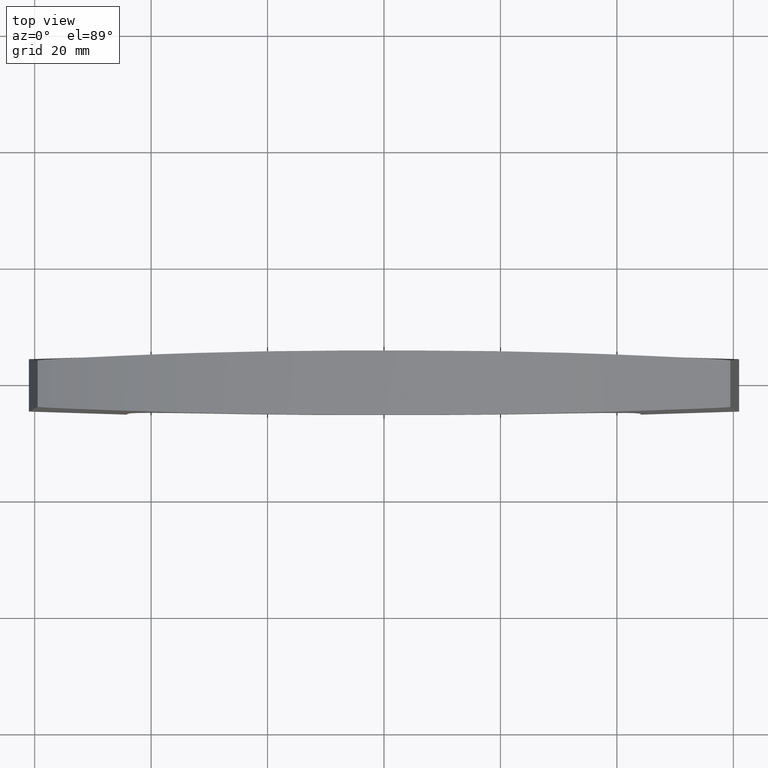
[diagram: clean part render]
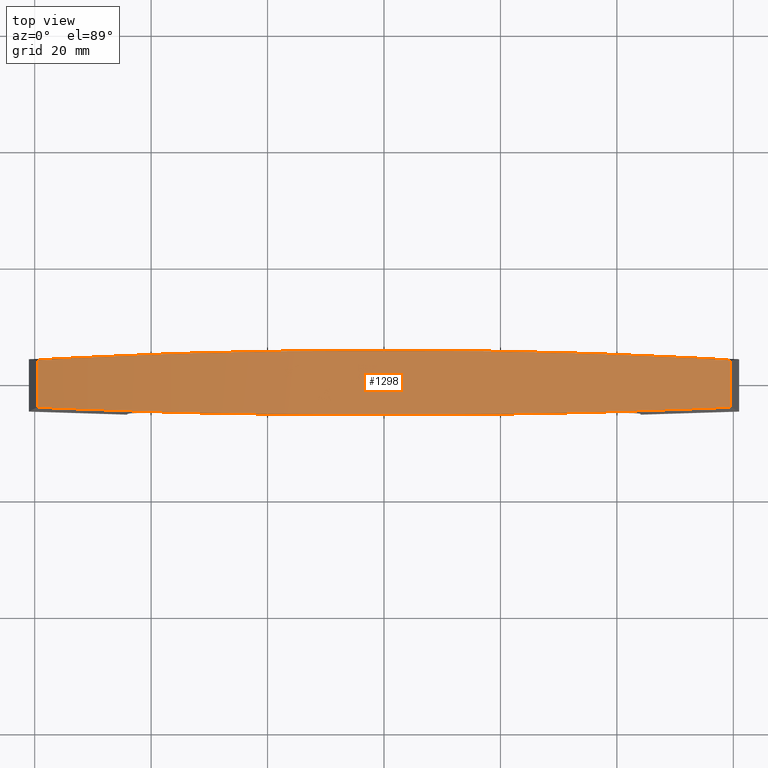
[diagram: same view with one face highlighted and labeled with its STEP entity id]
A machine part, top view. The second image highlights one B-rep face of the part: STEP entity #1298.
In plain terms, the highlighted face is a freeform B-spline surface patch.
Its self-contained STEP definition (entity closure, byte-faithful):
#1082=CARTESIAN_POINT('',(-65.038137320222717,5.780682861892679,15.839729997220351));
#1083=CARTESIAN_POINT('',(-65.038137320222717,-5.787563025863668,15.839729997220351));
#1084=CARTESIAN_POINT('',(0.025899457047544,5.780682861892679,41.052198127295746));
#1085=CARTESIAN_POINT('',(0.025899457047544,-5.787563025863670,41.052198127295746));
#1086=CARTESIAN_POINT('',(65.083168980110798,5.780682861892677,15.822273173631130));
#1087=CARTESIAN_POINT('',(65.083168980110798,-5.787563025863671,15.822273173631130));
#1095=(BOUNDED_SURFACE()B_SPLINE_SURFACE(1,2,((#1082,#1084,#1086),(#1083,#1085,#1087)),.UNSPECIFIED.,.F.,.F.,.U.)B_SPLINE_SURFACE_WITH_KNOTS((2,2),(3,3),(0.0,11.568245887756349),(0.052020457673073,134.743625732970200),.UNSPECIFIED.)GEOMETRIC_REPRESENTATION_ITEM()RATIONAL_B_SPLINE_SURFACE(((0.999944721843409,0.928407498035056,0.991525724050563),(0.999944721843409,0.928407498035056,0.991525724050563)))REPRESENTATION_ITEM('')SURFACE());
#1096=CARTESIAN_POINT('',(59.500311120296097,4.000003706765780,17.881867431229651));
#1097=VERTEX_POINT('',#1096);
#1098=CARTESIAN_POINT('',(-59.500002039603302,4.000000679867950,17.881975685202399));
#1099=VERTEX_POINT('',#1098);
#1100=CARTESIAN_POINT('',(59.500311120296097,4.000003706765760,17.881867431229701));
#1101=CARTESIAN_POINT('',(59.203287313492019,4.032263528969152,17.985898843144209));
#1102=CARTESIAN_POINT('',(58.905649503575937,4.058632544698630,18.089270398194870));
#1103=CARTESIAN_POINT('',(58.309523824154503,4.105984444614739,18.294553769800402));
#1104=CARTESIAN_POINT('',(58.011026093990537,4.126800627107297,18.396469208660928));
#1105=CARTESIAN_POINT('',(57.114449832188207,4.184421910049511,18.699954250525678));
#1106=CARTESIAN_POINT('',(56.515295323304777,4.216519973251519,18.899259914259890));
#1107=CARTESIAN_POINT('',(55.314577801468282,4.275968302440733,19.291661914084511));
#1108=CARTESIAN_POINT('',(54.713039524916972,4.303124045608266,19.484750139409869));
#1109=CARTESIAN_POINT('',(53.508089293751212,4.355478250206597,19.864542324461610));
#1110=CARTESIAN_POINT('',(52.904624779556812,4.380633116213078,20.051263670801049));
#1111=CARTESIAN_POINT('',(51.695779061680533,4.430503559780471,20.418338278301469));
#1112=CARTESIAN_POINT('',(51.090397286599462,4.455203960078853,20.598691768397519));
#1113=CARTESIAN_POINT('',(49.877749041409132,4.504991831913483,20.953021162079139));
#1114=CARTESIAN_POINT('',(49.270484291523033,4.530123136878542,21.126996639202520));
#1115=CARTESIAN_POINT('',(47.445857252732793,4.605967543439002,21.639355808685760));
#1116=CARTESIAN_POINT('',(46.225599836875908,4.656995495148552,21.968181723341441));
#1117=CARTESIAN_POINT('',(43.779829107803970,4.756560153547408,22.599717642740600));
#1118=CARTESIAN_POINT('',(42.554017860358293,4.805134179256409,22.902513939278450));
#1119=CARTESIAN_POINT('',(40.096471450467220,4.897441869008503,23.482213512711059));
#1120=CARTESIAN_POINT('',(38.864724465782217,4.940815577757510,23.759119281065420));
#1121=CARTESIAN_POINT('',(36.395281331171333,5.022005821807714,24.287035080332810));
#1122=CARTESIAN_POINT('',(35.157590617230063,5.059988238381320,24.538043908402830));
#1123=CARTESIAN_POINT('',(33.296603372392148,5.113328491121172,24.895100818159900));
#1124=CARTESIAN_POINT('',(32.675532359481679,5.130502705220245,25.010876803458359));
#1125=CARTESIAN_POINT('',(31.431907838740951,5.163736650842234,25.235933916819562));
#1126=CARTESIAN_POINT('',(30.809250237927628,5.179800268445416,25.345232466736121));
#1127=CARTESIAN_POINT('',(28.939916947212829,5.226504030623948,25.663224526123749));
#1128=CARTESIAN_POINT('',(27.692010166191039,5.255680165107246,25.861999285946091));
#1129=CARTESIAN_POINT('',(25.192820680311119,5.309338034043650,26.233162739538368));
#1130=CARTESIAN_POINT('',(23.941537707880759,5.333804511863230,26.405551414068299));
#1131=CARTESIAN_POINT('',(21.435598277248261,5.378068970427455,26.723958618865201));
#1132=CARTESIAN_POINT('',(20.180942978949020,5.397934976069276,26.869976969610530));
#1133=CARTESIAN_POINT('',(17.668268876116041,5.433716498707259,27.135623503721590));
#1134=CARTESIAN_POINT('',(16.410248106641710,5.449516675941535,27.255252005374459));
#1135=CARTESIAN_POINT('',(14.520672064806730,5.469252521244174,27.414863283716048));
#1136=CARTESIAN_POINT('',(13.890281451556440,5.475168801230725,27.464769156466261));
#1137=CARTESIAN_POINT('',(12.629255773458141,5.485509809315357,27.557916172786349));
#1138=CARTESIAN_POINT('',(11.998643097031040,5.489934509586788,27.601157111770359));
#1139=CARTESIAN_POINT('',(10.106505523083889,5.500724378352079,27.720894410838159));
#1140=CARTESIAN_POINT('',(8.844680483367176,5.504209352090627,27.787406385498709));
#1141=CARTESIAN_POINT('',(5.058012852733977,5.507162318430287,27.947060590382890));
#1142=CARTESIAN_POINT('',(2.531979663609485,5.500007466273419,28.000338405440839));
#1143=CARTESIAN_POINT('',(-0.627516680655564,5.499998140676417,28.000415331948570));
#1144=CARTESIAN_POINT('',(-1.259513729258115,5.500445095902930,27.997103341527019));
#1145=CARTESIAN_POINT('',(-2.523704414508428,5.501726945030449,27.983817304706339));
#1146=CARTESIAN_POINT('',(-3.156002991547075,5.502561927908490,27.973840718010319));
#1147=CARTESIAN_POINT('',(-5.052282393279909,5.504881436219805,27.933924718618972));
#1148=CARTESIAN_POINT('',(-6.315600536289233,5.506178193466957,27.894006814647771));
#1149=CARTESIAN_POINT('',(-8.840479216746989,5.504218203627588,27.787614534669650));
#1150=CARTESIAN_POINT('',(-10.102038383098710,5.500739386092409,27.721140243651188));
#1151=CARTESIAN_POINT('',(-12.623383008218619,5.486377092913481,27.561659336883022));
#1152=CARTESIAN_POINT('',(-13.883170944370420,5.475894066103534,27.468652643916720));
#1153=CARTESIAN_POINT('',(-16.400985262513011,5.449619928970049,27.256093981949061));
#1154=CARTESIAN_POINT('',(-17.659011675352929,5.433833797649345,27.136542012700701));
#1155=CARTESIAN_POINT('',(-19.544732843093080,5.406995078583391,26.937268574445248));
#1156=CARTESIAN_POINT('',(-20.173194147130069,5.397530750334727,26.867506701945061));
#1157=CARTESIAN_POINT('',(-21.429036912808819,5.377589681329529,26.721400442064120));
#1158=CARTESIAN_POINT('',(-22.056416316990859,5.367093882049167,26.645057811062980));
#1159=CARTESIAN_POINT('',(-23.936927324170540,5.333883233560663,26.406175049459140));
#1160=CARTESIAN_POINT('',(-25.188431154783132,5.309412768147023,26.233781251757058));
#1161=CARTESIAN_POINT('',(-27.687104786466008,5.255774671976400,25.862761068936340));
#1162=CARTESIAN_POINT('',(-28.934274977517891,5.226623610818166,25.664134687902600));
#1163=CARTESIAN_POINT('',(-31.424301539083981,5.164442295149669,25.240655485340550));
#1164=CARTESIAN_POINT('',(-32.667156877365322,5.131367888489060,25.015802695975061));
#1165=CARTESIAN_POINT('',(-35.148525150378553,5.060270832387698,24.539849160299049));
#1166=CARTESIAN_POINT('',(-36.387282893821883,5.022261554964052,24.288695533013460));
#1167=CARTESIAN_POINT('',(-38.859290831994592,4.940995302469257,23.760330059056919));
#1168=CARTESIAN_POINT('',(-40.092154801192542,4.897590461043528,23.483206792261399));
#1169=CARTESIAN_POINT('',(-42.551607939879709,4.805199669519595,22.903107291864671));
#1170=CARTESIAN_POINT('',(-43.778209672709160,4.756570033672166,22.600128419769071));
#1171=CARTESIAN_POINT('',(-46.225247340950013,4.656914332053630,21.968280123523950));
#1172=CARTESIAN_POINT('',(-47.445260593452723,4.605892791725787,21.639518325179399));
#1173=CARTESIAN_POINT('',(-49.269787149036361,4.530109062518767,21.127194909598590));
#1174=CARTESIAN_POINT('',(-49.877066239573352,4.505004694686606,20.953218303202480));
#1175=CARTESIAN_POINT('',(-51.089836430384878,4.455246740561388,20.598858015139509));
#1176=CARTESIAN_POINT('',(-51.695325798637761,4.430548251024526,20.418474765063628));
#1177=CARTESIAN_POINT('',(-52.904478384413792,4.380622461264875,20.051309273945609));
#1178=CARTESIAN_POINT('',(-53.508041412452712,4.355413591407886,19.864557169337530));
#1179=CARTESIAN_POINT('',(-54.712959372897707,4.302898289055460,19.484775649745849));
#1180=CARTESIAN_POINT('',(-55.314332703749862,4.275635507739558,19.291740477910789));
#1181=CARTESIAN_POINT('',(-56.514749664747228,4.215962281496343,18.899439773521390));
#1182=CARTESIAN_POINT('',(-57.113802602436877,4.183736502923389,18.700170751133239));
#1183=CARTESIAN_POINT('',(-58.010358917579111,4.126073613697125,18.396696332413111));
#1184=CARTESIAN_POINT('',(-58.308872349637092,4.105269038781962,18.294776936165881));
#1185=CARTESIAN_POINT('',(-58.905100694705503,4.058091431249219,18.089460562135560));
#1186=CARTESIAN_POINT('',(-59.202823336732372,4.031871425550959,17.986060741840610));
#1187=CARTESIAN_POINT('',(-59.500002039603302,4.000000679867950,17.881975685202399));
#1188=B_SPLINE_CURVE_WITH_KNOTS('',3,(#1100,#1101,#1102,#1103,#1104,#1105,#1106,#1107,#1108,#1109,#1110,#1111,#1112,#1113,#1114,#1115,#1116,#1117,#1118,#1119,#1120,#1121,#1122,#1123,#1124,#1125,#1126,#1127,#1128,#1129,#1130,#1131,#1132,#1133,#1134,#1135,#1136,#1137,#1138,#1139,#1140,#1141,#1142,#1143,#1144,#1145,#1146,#1147,#1148,#1149,#1150,#1151,#1152,#1153,#1154,#1155,#1156,#1157,#1158,#1159,#1160,#1161,#1162,#1163,#1164,#1165,#1166,#1167,#1168,#1169,#1170,#1171,#1172,#1173,#1174,#1175,#1176,#1177,#1178,#1179,#1180,#1181,#1182,#1183,#1184,#1185,#1186,#1187),.UNSPECIFIED.,.F.,.U.,(4,2,2,2,2,2,2,2,2,2,2,2,2,2,2,2,2,2,2,2,2,2,2,2,2,2,2,2,2,2,2,2,2,2,2,2,2,2,2,2,2,2,2,4),(0.0,0.007812500000000,0.015625000000000,0.031250000000000,0.046875000000000,0.062500000000001,0.078125000000001,0.093750000000001,0.125000000000001,0.156250000000001,0.187500000000001,0.218750000000001,0.234375000000001,0.250000000000001,0.281250000000002,0.312500000000002,0.343750000000002,0.375000000000002,0.390625000000002,0.406250000000002,0.437500000000002,0.500000000000002,0.515625000000002,0.531250000000002,0.562500000000002,0.593750000000002,0.625000000000002,0.656250000000002,0.671875000000002,0.687500000000003,0.718750000000002,0.750000000000002,0.781250000000002,0.812500000000002,0.843750000000002,0.875000000000001,0.906250000000001,0.921875000000001,0.937500000000001,0.953125000000001,0.968750000000001,0.984375000000000,0.992187500000000,1.0),.UNSPECIFIED.);
#1189=EDGE_CURVE('',#1097,#1099,#1188,.T.);
#1190=ORIENTED_EDGE('',*,*,#1189,.T.);
#1191=CARTESIAN_POINT('',(-59.500002039602812,-4.000000679867860,17.881975685202750));
#1192=VERTEX_POINT('',#1191);
#1193=CARTESIAN_POINT('',(-59.500002039603302,4.000000679867950,17.881975685202399));
#1194=CARTESIAN_POINT('',(-59.500002039602812,-4.000000679867860,17.881975685202750));
#1195=QUASI_UNIFORM_CURVE('',1,(#1193,#1194),.UNSPECIFIED.,.F.,.U.);
#1196=EDGE_CURVE('',#1099,#1192,#1195,.T.);
#1197=ORIENTED_EDGE('',*,*,#1196,.T.);
#1198=CARTESIAN_POINT('',(59.500311120296097,-4.000003706765675,17.881867431229701));
#1199=VERTEX_POINT('',#1198);
#1200=CARTESIAN_POINT('',(-59.500002039602812,-4.000000679867875,17.881975685202701));
#1201=CARTESIAN_POINT('',(-59.202951650959541,-4.031857664571169,17.986015800552771));
#1202=CARTESIAN_POINT('',(-58.905302530505217,-4.058073864810369,18.089390576383050));
#1203=CARTESIAN_POINT('',(-58.309162233530337,-4.105247695726769,18.294677593602959));
#1204=CARTESIAN_POINT('',(-58.010662060485842,-4.126053011327645,18.396593143793520));
#1205=CARTESIAN_POINT('',(-57.114083562234953,-4.183720641959837,18.700076804666409));
#1206=CARTESIAN_POINT('',(-56.514934231589002,-4.215952988429058,18.899379305636138));
#1207=CARTESIAN_POINT('',(-55.314225772117922,-4.275640941520567,19.291775574312702));
#1208=CARTESIAN_POINT('',(-54.712691877523007,-4.302910301678708,19.484861044646330));
#1209=CARTESIAN_POINT('',(-53.507747728437337,-4.355426037135759,19.864648653661259));
#1210=CARTESIAN_POINT('',(-52.904285029440622,-4.380630458946734,20.051368137447270));
#1211=CARTESIAN_POINT('',(-51.695440747712261,-4.430543490713485,20.418439709912501));
#1212=CARTESIAN_POINT('',(-51.090058621145637,-4.455237662396748,20.598792017226820));
#1213=CARTESIAN_POINT('',(-49.877408809168067,-4.504990601686062,20.953119282836159));
#1214=CARTESIAN_POINT('',(-49.270142888573908,-4.530094317551069,21.127093801323070));
#1215=CARTESIAN_POINT('',(-47.445513367627967,-4.605882230360203,21.639449780377628));
#1216=CARTESIAN_POINT('',(-46.225256065433307,-4.656913520713346,21.968273058684279));
#1217=CARTESIAN_POINT('',(-43.779486501350853,-4.756518490573156,22.599803540090608));
#1218=CARTESIAN_POINT('',(-42.553675985360073,-4.805117782569530,22.902597112055869));
#1219=CARTESIAN_POINT('',(-40.096129984122364,-4.897445320278773,23.482291529547329));
#1220=CARTESIAN_POINT('',(-38.864382833269516,-4.940818519290950,23.759194820664408));
#1221=CARTESIAN_POINT('',(-36.394939679480288,-5.022019178644673,24.287105612052141));
#1222=CARTESIAN_POINT('',(-35.157249000777753,-5.060009048553346,24.538111939744010));
#1223=CARTESIAN_POINT('',(-33.296261366290622,-5.113348410580866,24.895165192708099));
#1224=CARTESIAN_POINT('',(-32.675190154090252,-5.130520452229392,25.010939973182019));
#1225=CARTESIAN_POINT('',(-31.431565135583341,-5.163747514678740,25.235994693422139));
#1226=CARTESIAN_POINT('',(-30.808907205786362,-5.179806474950897,25.345292059064210));
#1227=CARTESIAN_POINT('',(-28.939573819807670,-5.226498311217277,25.663280416117079));
#1228=CARTESIAN_POINT('',(-27.691667015836959,-5.255671319496686,25.862052709492961));
#1229=CARTESIAN_POINT('',(-25.192477543301731,-5.309331304006227,26.233211238274841));
#1230=CARTESIAN_POINT('',(-23.941194584858771,-5.333801713125330,26.405597458272069));
#1231=CARTESIAN_POINT('',(-21.435255028756369,-5.378069996966849,26.723999785051589));
#1232=CARTESIAN_POINT('',(-20.180599590286810,-5.397935858762549,26.870015711621772));
#1233=CARTESIAN_POINT('',(-17.667925103755898,-5.433716058751035,27.135657409519471));
#1234=CARTESIAN_POINT('',(-16.409904095804560,-5.449515353981245,27.255283498682729));
#1235=CARTESIAN_POINT('',(-14.520327647354449,-5.469250844248007,27.414891158471999));
#1236=CARTESIAN_POINT('',(-13.889936857056870,-5.475167144866334,27.464795826181518));
#1237=CARTESIAN_POINT('',(-12.628911603587680,-5.485508463925171,27.557940378726929));
#1238=CARTESIAN_POINT('',(-11.998299122960249,-5.489933458877390,27.601180090520259));
#1239=CARTESIAN_POINT('',(-10.106162086410190,-5.500724424577559,27.720913719922951));
#1240=CARTESIAN_POINT('',(-8.844337337917056,-5.504210303717488,27.787423264036370));
#1241=CARTESIAN_POINT('',(-5.057670378206599,-5.507164474253818,27.947070207329819));
#1242=CARTESIAN_POINT('',(-2.531637366658468,-5.500008467748430,28.000343221206311));
#1243=CARTESIAN_POINT('',(0.627859080200238,-5.499997892389869,28.000414138020339));
#1244=CARTESIAN_POINT('',(1.259856165583791,-5.500444589300621,27.997100945259309));
#1245=CARTESIAN_POINT('',(2.524046957182259,-5.501725954404015,27.983812501521950));
#1246=CARTESIAN_POINT('',(3.156345625408171,-5.502560713273750,27.973834708058259));
#1247=CARTESIAN_POINT('',(5.052623909699928,-5.504879729737876,27.933915124109351));
#1248=CARTESIAN_POINT('',(6.315941400465650,-5.506176436834136,27.893994844261510));
#1249=CARTESIAN_POINT('',(8.840818968977763,-5.504217255674801,27.787597824881811));
#1250=CARTESIAN_POINT('',(10.102377676308009,-5.500739351882912,27.721121170269420));
#1251=CARTESIAN_POINT('',(12.623721571482379,-5.486378547018386,27.561635533625662));
#1252=CARTESIAN_POINT('',(13.883509234993920,-5.475895917148668,27.468626474482210));
#1253=CARTESIAN_POINT('',(16.401323186242522,-5.449621327168013,27.256063063443040));
#1254=CARTESIAN_POINT('',(17.659349504675600,-5.433834321899831,27.136508711367291));
#1255=CARTESIAN_POINT('',(19.545070670595059,-5.406994613649247,26.937231674689642));
#1256=CARTESIAN_POINT('',(20.173531997690279,-5.397530026556813,26.867468596402059));
#1257=CARTESIAN_POINT('',(21.429373716213519,-5.377589192536349,26.721360056907400));
#1258=CARTESIAN_POINT('',(22.056752635751199,-5.367093923105186,26.645016285990959));
#1259=CARTESIAN_POINT('',(23.937262306863872,-5.333886174402333,26.406130099868381));
#1260=CARTESIAN_POINT('',(25.188765410198538,-5.309419666194323,26.233734011178338));
#1261=CARTESIAN_POINT('',(27.687437686436699,-5.255783752946812,25.862709245072949));
#1262=CARTESIAN_POINT('',(28.934607219478259,-5.226629613030585,25.664080576870369));
#1263=CARTESIAN_POINT('',(31.424632472662790,-5.164432486846369,25.240596809368760));
#1264=CARTESIAN_POINT('',(32.667487235838060,-5.131348624690989,25.015741731270850));
#1265=CARTESIAN_POINT('',(35.148854988291852,-5.060250347117896,24.539783491486890));
#1266=CARTESIAN_POINT('',(36.387613252746043,-5.022248510986443,24.288627340952821));
#1267=CARTESIAN_POINT('',(38.859619363935167,-4.940992796085656,23.760257419539808));
#1268=CARTESIAN_POINT('',(40.092482378661337,-4.897587495820567,23.483131951876459));
#1269=CARTESIAN_POINT('',(42.551934653226169,-4.805216622420561,22.903027807145779));
#1270=CARTESIAN_POINT('',(43.778536643316670,-4.756612297040482,22.600046442590951));
#1271=CARTESIAN_POINT('',(46.225574736905472,-4.656996988013593,21.968193136404270));
#1272=CARTESIAN_POINT('',(47.445586477573237,-4.605978859143142,21.639429266257611));
#1273=CARTESIAN_POINT('',(49.270109335287067,-4.530138692538140,21.127103215509599));
#1274=CARTESIAN_POINT('',(49.877386885924487,-4.505006745158298,20.953125830121380));
#1275=CARTESIAN_POINT('',(51.090154825986801,-4.455213870665346,20.598763765401969));
#1276=CARTESIAN_POINT('',(51.695643525441007,-4.430509157301532,20.418379504986142));
#1277=CARTESIAN_POINT('',(52.904796906425659,-4.380626009160136,20.051211333109229));
#1278=CARTESIAN_POINT('',(53.508361420421743,-4.355466745119006,19.864457551898099));
#1279=CARTESIAN_POINT('',(54.713285878547879,-4.303113022969516,19.484671490049241));
#1280=CARTESIAN_POINT('',(55.314664135498603,-4.275963849446617,19.291633471616070));
#1281=CARTESIAN_POINT('',(56.515091569237917,-4.216530239772811,18.899326730308498));
#1282=CARTESIAN_POINT('',(57.114150472032492,-4.184438775761271,18.700054362752390));
#1283=CARTESIAN_POINT('',(58.010707861651987,-4.126822265180143,18.396577537280269));
#1284=CARTESIAN_POINT('',(58.309220316293192,-4.106006835612657,18.294657782562290));
#1285=CARTESIAN_POINT('',(58.905438784933573,-4.058650998643365,18.089343465359459));
#1286=CARTESIAN_POINT('',(59.203153259233609,-4.032278088632113,17.985945795117171));
#1287=CARTESIAN_POINT('',(59.500311120296097,-4.000003706765680,17.881867431229601));
#1288=B_SPLINE_CURVE_WITH_KNOTS('',3,(#1200,#1201,#1202,#1203,#1204,#1205,#1206,#1207,#1208,#1209,#1210,#1211,#1212,#1213,#1214,#1215,#1216,#1217,#1218,#1219,#1220,#1221,#1222,#1223,#1224,#1225,#1226,#1227,#1228,#1229,#1230,#1231,#1232,#1233,#1234,#1235,#1236,#1237,#1238,#1239,#1240,#1241,#1242,#1243,#1244,#1245,#1246,#1247,#1248,#1249,#1250,#1251,#1252,#1253,#1254,#1255,#1256,#1257,#1258,#1259,#1260,#1261,#1262,#1263,#1264,#1265,#1266,#1267,#1268,#1269,#1270,#1271,#1272,#1273,#1274,#1275,#1276,#1277,#1278,#1279,#1280,#1281,#1282,#1283,#1284,#1285,#1286,#1287),.UNSPECIFIED.,.F.,.U.,(4,2,2,2,2,2,2,2,2,2,2,2,2,2,2,2,2,2,2,2,2,2,2,2,2,2,2,2,2,2,2,2,2,2,2,2,2,2,2,2,2,2,2,4),(0.0,0.007812500000000,0.015625000000000,0.031250000000000,0.046875000000000,0.062500000000000,0.078125000000000,0.093749999999999,0.124999999999999,0.156249999999999,0.187499999999999,0.218749999999999,0.234374999999999,0.249999999999998,0.281249999999998,0.312499999999998,0.343749999999998,0.374999999999998,0.390624999999998,0.406249999999998,0.437499999999998,0.499999999999998,0.515624999999998,0.531249999999998,0.562499999999998,0.593749999999998,0.624999999999998,0.656249999999998,0.671874999999998,0.687499999999998,0.718749999999998,0.749999999999998,0.781249999999998,0.812499999999999,0.843749999999999,0.874999999999999,0.906249999999999,0.921874999999999,0.937499999999999,0.953124999999999,0.968750000000000,0.984375000000000,0.992187500000000,1.0),.UNSPECIFIED.);
#1289=EDGE_CURVE('',#1192,#1199,#1288,.T.);
#1290=ORIENTED_EDGE('',*,*,#1289,.T.);
#1291=CARTESIAN_POINT('',(59.500311120296097,-4.000003706765675,17.881867431229701));
#1292=CARTESIAN_POINT('',(59.500311120296097,4.000003706765780,17.881867431229651));
#1293=QUASI_UNIFORM_CURVE('',1,(#1291,#1292),.UNSPECIFIED.,.F.,.U.);
#1294=EDGE_CURVE('',#1199,#1097,#1293,.T.);
#1295=ORIENTED_EDGE('',*,*,#1294,.T.);
#1296=EDGE_LOOP('',(#1190,#1197,#1290,#1295));
#1297=FACE_OUTER_BOUND('',#1296,.T.);
#1298=ADVANCED_FACE('',(#1297),#1095,.T.);